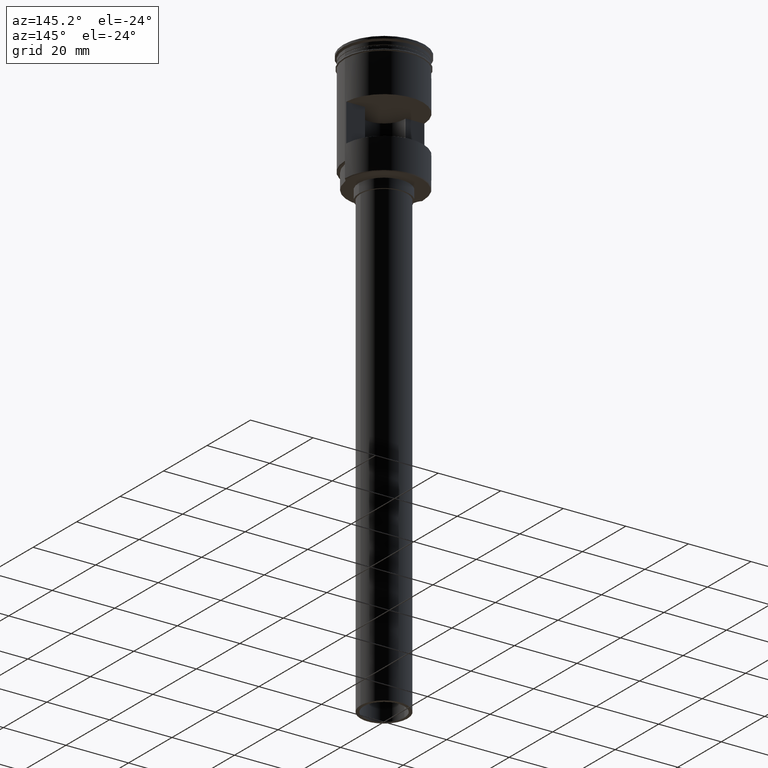
[diagram: clean part render]
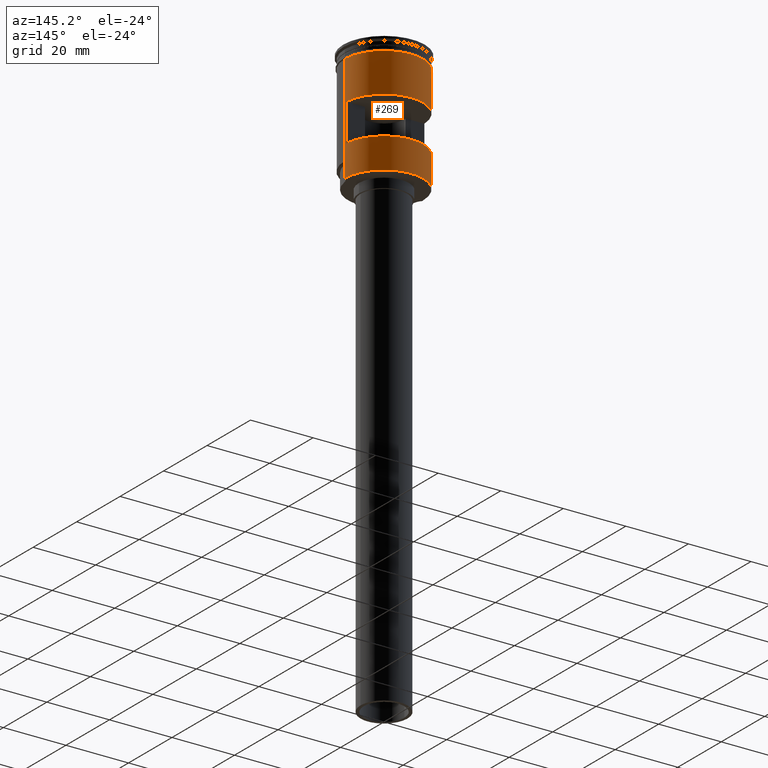
[diagram: same view with one face highlighted and labeled with its STEP entity id]
A machine part, auxiliary view. The second image highlights one B-rep face of the part: STEP entity #269.
In plain terms, the highlighted cylindrical surface (partial cylindrical patch) has radius 12.5 mm, axis along (-0, -0, 1).
Its self-contained STEP definition (entity closure, byte-faithful):
#10 = VERTEX_POINT ( 'NONE', #156 ) ;
#18 = VECTOR ( 'NONE', #1312, 1000.000000000000000 ) ;
#27 = EDGE_LOOP ( 'NONE', ( #804, #1321, #758, #1473 ) ) ;
#47 = DIRECTION ( 'NONE',  ( 0.000000000000000000, 0.000000000000000000, -1.000000000000000000 ) ) ;
#55 = LINE ( 'NONE', #691, #895 ) ;
#60 = CARTESIAN_POINT ( 'NONE',  ( 12.48559169603106689, 0.6000000000000003109, 0.000000000000000000 ) ) ;
#61 = DIRECTION ( 'NONE',  ( 0.000000000000000000, 0.000000000000000000, 1.000000000000000000 ) ) ;
#75 = ORIENTED_EDGE ( 'NONE', *, *, #1434, .F. ) ;
#80 = CARTESIAN_POINT ( 'NONE',  ( 0.000000000000000000, 0.000000000000000000, 0.000000000000000000 ) ) ;
#105 = CARTESIAN_POINT ( 'NONE',  ( 12.48559169603106689, 0.6000000000000003109, -16.50000000000000000 ) ) ;
#117 = CIRCLE ( 'NONE', #1331, 12.49999999999999645 ) ;
#122 = VERTEX_POINT ( 'NONE', #1168 ) ;
#127 = EDGE_CURVE ( 'NONE', #1429, #1358, #1130, .T. ) ;
#152 = ORIENTED_EDGE ( 'NONE', *, *, #1145, .F. ) ;
#156 = CARTESIAN_POINT ( 'NONE',  ( 12.49999999999999822, 0.000000000000000000, -3.999999999999996447 ) ) ;
#261 = CARTESIAN_POINT ( 'NONE',  ( -12.48559169603106689, 0.6000000000000003109, -16.50000000000000000 ) ) ;
#269 = ADVANCED_FACE ( 'NONE', ( #1071, #1189 ), #963, .T. ) ;
#294 = LINE ( 'NONE', #60, #455 ) ;
#297 = AXIS2_PLACEMENT_3D ( 'NONE', #80, #1463, #354 ) ;
#303 = DIRECTION ( 'NONE',  ( 1.000000000000000000, 0.000000000000000000, 0.000000000000000000 ) ) ;
#343 = DIRECTION ( 'NONE',  ( -0.000000000000000000, -0.000000000000000000, 1.000000000000000000 ) ) ;
#354 = DIRECTION ( 'NONE',  ( 1.000000000000000000, 0.000000000000000000, 0.000000000000000000 ) ) ;
#355 = CIRCLE ( 'NONE', #1257, 12.49999999999999822 ) ;
#357 = EDGE_CURVE ( 'NONE', #1429, #1248, #519, .T. ) ;
#372 = LINE ( 'NONE', #854, #757 ) ;
#387 = CARTESIAN_POINT ( 'NONE',  ( 12.49999999999999645, 1.530808498934191127E-15, -33.29999999999998295 ) ) ;
#393 = CARTESIAN_POINT ( 'NONE',  ( 0.000000000000000000, 0.000000000000000000, -28.49999999999999645 ) ) ;
#400 = VERTEX_POINT ( 'NONE', #261 ) ;
#447 = DIRECTION ( 'NONE',  ( -0.000000000000000000, -0.000000000000000000, 1.000000000000000000 ) ) ;
#449 = LINE ( 'NONE', #1436, #18 ) ;
#453 = CARTESIAN_POINT ( 'NONE',  ( 12.48559169603106689, 0.6000000000000003109, -28.49999999999999645 ) ) ;
#455 = VECTOR ( 'NONE', #47, 1000.000000000000000 ) ;
#496 = EDGE_CURVE ( 'NONE', #1186, #1488, #294, .T. ) ;
#498 = VERTEX_POINT ( 'NONE', #1394 ) ;
#519 = LINE ( 'NONE', #981, #1541 ) ;
#537 = DIRECTION ( 'NONE',  ( 1.000000000000000000, 0.000000000000000000, 0.000000000000000000 ) ) ;
#571 = ORIENTED_EDGE ( 'NONE', *, *, #674, .T. ) ;
#598 = EDGE_CURVE ( 'NONE', #400, #1186, #117, .T. ) ;
#599 = VERTEX_POINT ( 'NONE', #791 ) ;
#643 = CARTESIAN_POINT ( 'NONE',  ( 12.49999999999999289, 1.530808498934190732E-15, -38.29999999999996874 ) ) ;
#656 = DIRECTION ( 'NONE',  ( -1.000000000000000000, 0.000000000000000000, 0.000000000000000000 ) ) ;
#674 = EDGE_CURVE ( 'NONE', #1358, #599, #1175, .T. ) ;
#691 = CARTESIAN_POINT ( 'NONE',  ( -12.49999999999999645, 1.530808498934191127E-15, 0.000000000000000000 ) ) ;
#749 = DIRECTION ( 'NONE',  ( -0.000000000000000000, -0.000000000000000000, 1.000000000000000000 ) ) ;
#757 = VECTOR ( 'NONE', #1356, 1000.000000000000000 ) ;
#758 = ORIENTED_EDGE ( 'NONE', *, *, #851, .F. ) ;
#777 = DIRECTION ( 'NONE',  ( -0.000000000000000000, -0.000000000000000000, 1.000000000000000000 ) ) ;
#787 = DIRECTION ( 'NONE',  ( 0.000000000000000000, 0.000000000000000000, 1.000000000000000000 ) ) ;
#791 = CARTESIAN_POINT ( 'NONE',  ( -12.49999999999999289, 0.000000000000000000, -33.29999999999998295 ) ) ;
#804 = ORIENTED_EDGE ( 'NONE', *, *, #496, .F. ) ;
#822 = ORIENTED_EDGE ( 'NONE', *, *, #1483, .T. ) ;
#838 = VECTOR ( 'NONE', #343, 1000.000000000000000 ) ;
#850 = ORIENTED_EDGE ( 'NONE', *, *, #127, .T. ) ;
#851 = EDGE_CURVE ( 'NONE', #498, #400, #372, .T. ) ;
#854 = CARTESIAN_POINT ( 'NONE',  ( -12.48559169603106689, 0.6000000000000003109, 0.000000000000000000 ) ) ;
#895 = VECTOR ( 'NONE', #447, 1000.000000000000000 ) ;
#901 = CARTESIAN_POINT ( 'NONE',  ( 0.000000000000000000, 0.000000000000000000, -38.29999999999996874 ) ) ;
#963 = CYLINDRICAL_SURFACE ( 'NONE', #297, 12.49999999999999645 ) ;
#981 = CARTESIAN_POINT ( 'NONE',  ( 12.49999999999999289, 1.530808498934190732E-15, -38.50000000000000000 ) ) ;
#1000 = CIRCLE ( 'NONE', #1023, 12.49999999999999645 ) ;
#1023 = AXIS2_PLACEMENT_3D ( 'NONE', #393, #787, #1269 ) ;
#1040 = ORIENTED_EDGE ( 'NONE', *, *, #357, .F. ) ;
#1071 = FACE_BOUND ( 'NONE', #27, .T. ) ;
#1124 = CARTESIAN_POINT ( 'NONE',  ( 0.000000000000000000, 0.000000000000000000, -3.999999999999996447 ) ) ;
#1130 = CIRCLE ( 'NONE', #1308, 12.49999999999999645 ) ;
#1145 = EDGE_CURVE ( 'NONE', #1248, #10, #449, .T. ) ;
#1157 = CARTESIAN_POINT ( 'NONE',  ( -12.49999999999999289, 0.000000000000000000, -38.29999999999996874 ) ) ;
#1166 = DIRECTION ( 'NONE',  ( -0.000000000000000000, 0.000000000000000000, -1.000000000000000000 ) ) ;
#1168 = CARTESIAN_POINT ( 'NONE',  ( -12.50000000000000000, 1.530808498934191521E-15, -3.999999999999996447 ) ) ;
#1175 = LINE ( 'NONE', #1579, #838 ) ;
#1186 = VERTEX_POINT ( 'NONE', #105 ) ;
#1189 = FACE_OUTER_BOUND ( 'NONE', #1447, .T. ) ;
#1248 = VERTEX_POINT ( 'NONE', #387 ) ;
#1257 = AXIS2_PLACEMENT_3D ( 'NONE', #1124, #777, #537 ) ;
#1269 = DIRECTION ( 'NONE',  ( -1.000000000000000000, 0.000000000000000000, 0.000000000000000000 ) ) ;
#1308 = AXIS2_PLACEMENT_3D ( 'NONE', #901, #61, #656 ) ;
#1312 = DIRECTION ( 'NONE',  ( -0.000000000000000000, -0.000000000000000000, 1.000000000000000000 ) ) ;
#1321 = ORIENTED_EDGE ( 'NONE', *, *, #598, .F. ) ;
#1331 = AXIS2_PLACEMENT_3D ( 'NONE', #1415, #1166, #303 ) ;
#1332 = EDGE_CURVE ( 'NONE', #1488, #498, #1000, .T. ) ;
#1356 = DIRECTION ( 'NONE',  ( -0.000000000000000000, -0.000000000000000000, 1.000000000000000000 ) ) ;
#1358 = VERTEX_POINT ( 'NONE', #1157 ) ;
#1394 = CARTESIAN_POINT ( 'NONE',  ( -12.48559169603106689, 0.6000000000000003109, -28.49999999999999645 ) ) ;
#1415 = CARTESIAN_POINT ( 'NONE',  ( 0.000000000000000000, 0.000000000000000000, -16.50000000000000000 ) ) ;
#1429 = VERTEX_POINT ( 'NONE', #643 ) ;
#1434 = EDGE_CURVE ( 'NONE', #10, #122, #355, .T. ) ;
#1436 = CARTESIAN_POINT ( 'NONE',  ( 12.49999999999999645, 0.000000000000000000, 0.000000000000000000 ) ) ;
#1447 = EDGE_LOOP ( 'NONE', ( #571, #822, #75, #152, #1040, #850 ) ) ;
#1463 = DIRECTION ( 'NONE',  ( -0.000000000000000000, -0.000000000000000000, 1.000000000000000000 ) ) ;
#1473 = ORIENTED_EDGE ( 'NONE', *, *, #1332, .F. ) ;
#1483 = EDGE_CURVE ( 'NONE', #599, #122, #55, .T. ) ;
#1488 = VERTEX_POINT ( 'NONE', #453 ) ;
#1541 = VECTOR ( 'NONE', #749, 1000.000000000000000 ) ;
#1579 = CARTESIAN_POINT ( 'NONE',  ( -12.49999999999999289, 0.000000000000000000, -38.50000000000000000 ) ) ;